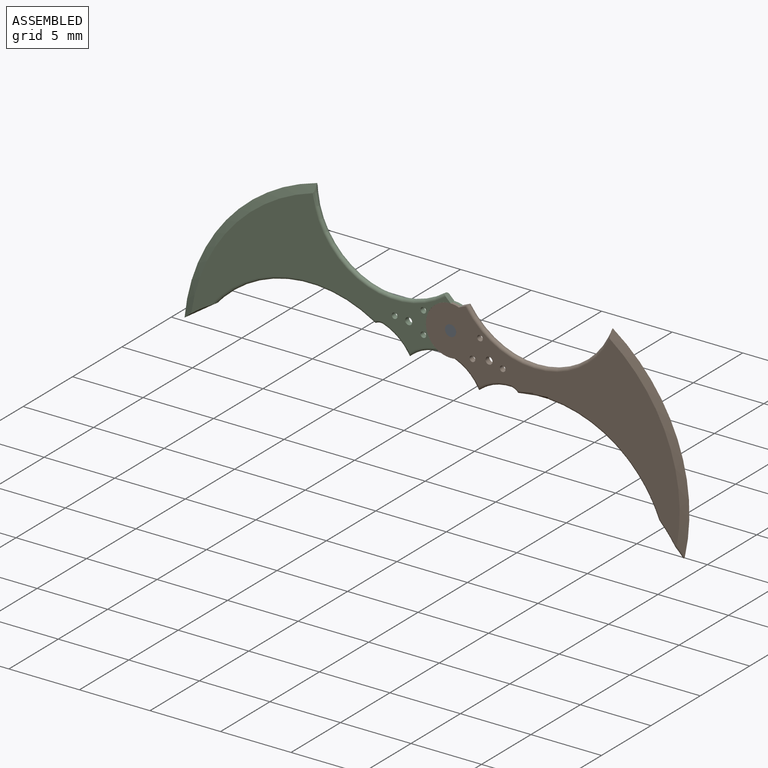
[diagram: assembled view]
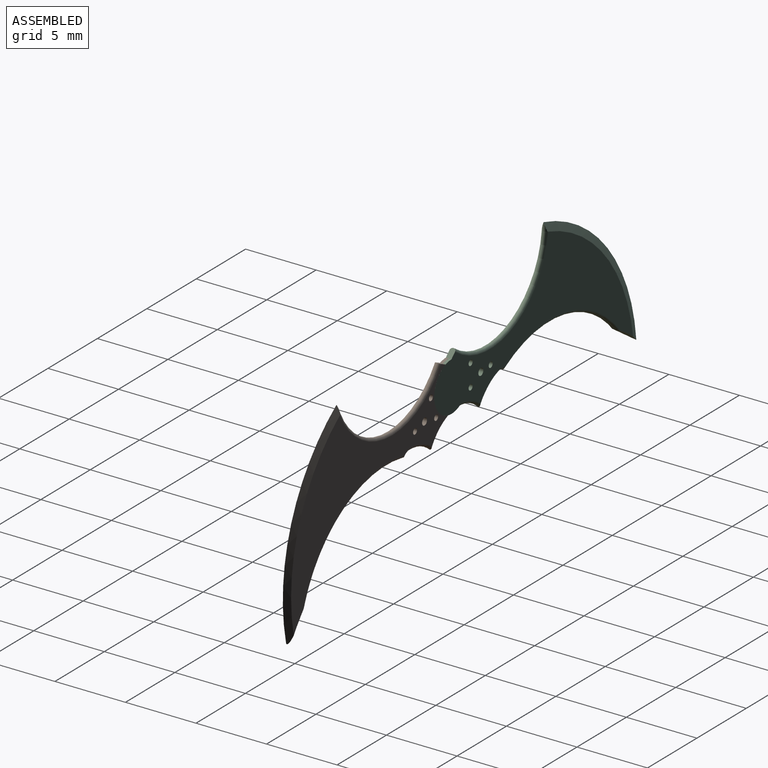
[diagram: assembled view, second angle]
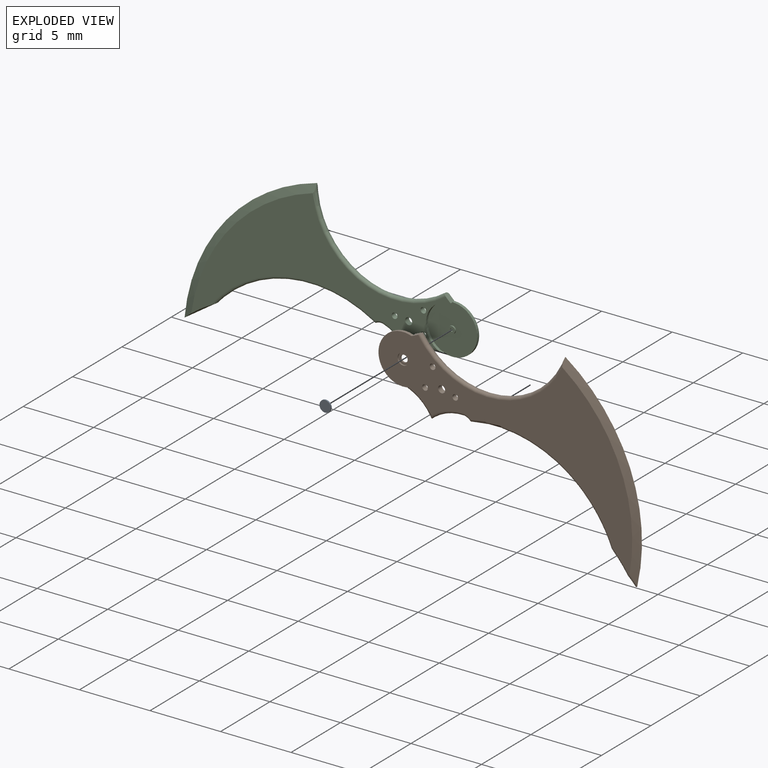
[diagram: exploded view]
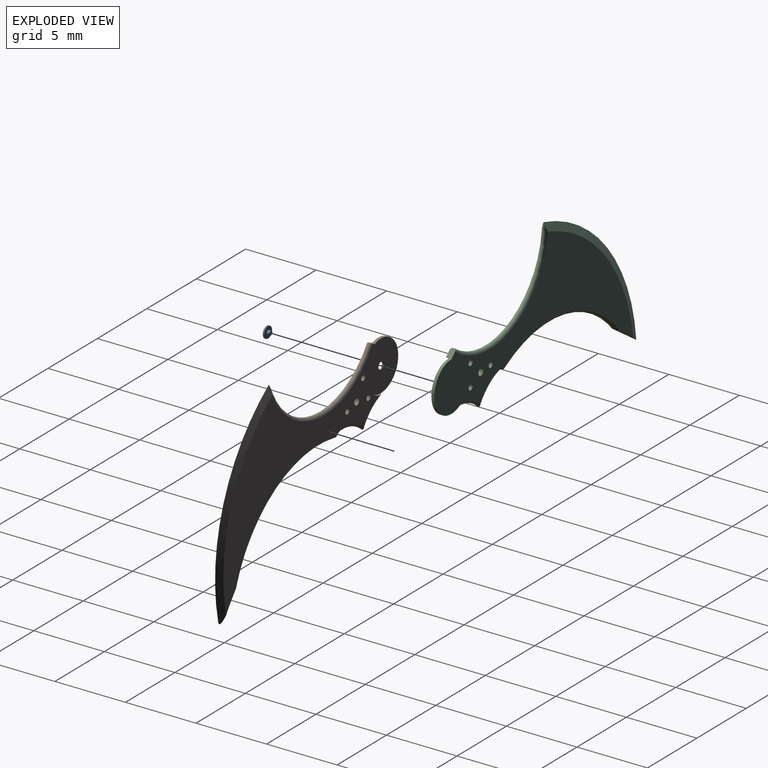
[diagram: exploded view, second angle]
ASSEMBLY  parts=3 mates=2
PART A: 5 faces, bbox 0.8x0.3x0.8 mm
  f0: cylinder r=0.15mm len=0.3mm, axis (0,-1,0), area 0.2mm2, adj f1,f3
  f1: plane 0.3x0.3mm, normal (0,1,0), area 0.1mm2, adj f0
  f2: cylinder r=0.4mm len=0.8mm, axis (0,-1,0), area 0.3mm2, adj f3,f4
  f3: plane 0.8x0.8mm, normal (0,1,0), area 0.4mm2, adj f0,f2
  f4: plane 0.8x0.8mm, normal (0,-1,0), area 0.5mm2, adj f2
PART B: 23 faces, bbox 22.1x1.3x12.4 mm
  f0: cylinder r=1.75mm len=3.38mm, axis (0,1,0), area 0.9mm2, adj f2,f8,f11,f14
  f1: cylinder r=9.75mm len=1.96mm, axis (0,1,0), area 0.4mm2, adj f8,f13,f17,f18,f19
  f2: plane 0.51x0.49mm, normal (-0.7,0,0.72), area 0.3mm2, adj f0,f7,f8,f10,f20
  f3: cylinder r=0.2mm len=0.4mm, axis (0,1,0), area 0.5mm2, adj f7,f8
  f4: cylinder r=0.25mm len=0.5mm, axis (0,1,0), area 0.6mm2, adj f7,f8
  f5: cylinder r=0.2mm len=0.4mm, axis (0,1,0), area 0.5mm2, adj f7,f8
  f6: cylinder r=0.2mm len=0.4mm, axis (0,1,0), area 0.5mm2, adj f7,f8
  f7: plane 20.09x9.71mm, normal (0,-1,0), area 64.3mm2, adj f2,f3,f4,f5,f6,f9,f10,f12
  f8: plane 18.38x10mm, normal (0,1,0), area 55.6mm2, adj f0,f1,f2,f3,f4,f5,f6,f13
  f9: cylinder r=0.4mm len=0.8mm, axis (0,1,0), area 0.3mm2, adj f7,f22
  f10: cylinder r=1.75mm len=3.5mm, axis (0,1,0), area 1.3mm2, adj f2,f7,f11,f14
  f11: plane 3.5x3.5mm, normal (0,1,0), area 9.4mm2, adj f0,f10,f21
  f12: cone r=12.2mm half-angle=70deg, axis (0,1,0), area 8.4mm2, adj f7,f13,f19,f20
  f13: cone r=12.75mm half-angle=70deg, axis (0,-1,0), area 8.6mm2, adj f1,f8,f12,f19,f20
  f14: torus R=3.38mm, axis (0,-1,0), area 1.4mm2, adj f0,f7,f8,f10,f15
  f15: torus R=3.55mm, axis (0,-1,0), area 1.6mm2, adj f7,f8,f14,f16
  f16: torus R=1mm, axis (0,-1,0), area 0.3mm2, adj f7,f8,f15,f17
  f17: torus R=9mm, axis (0,-1,0), area 7.9mm2, adj f1,f7,f8,f16,f18
  f18: torus R=9.95mm, axis (0,-1,0), area 0.6mm2, adj f1,f7,f17,f19
  f19: bspline ~3.41x2.9mm, area 0.3mm2, adj f1,f7,f12,f13,f18
  f20: torus R=5.9mm, axis (0,-1,0), area 7.8mm2, adj f2,f7,f8,f12,f13
  f21: cylinder r=0.25mm len=0.5mm, axis (0,1,0), area 0.2mm2, adj f11,f22
  f22: plane 0.8x0.8mm, normal (0,-1,0), area 0.3mm2, adj f9,f21
PART C: 22 faces, bbox 20.8x0.4x11.2 mm
  f0: cylinder r=1.75mm len=3.38mm, axis (0,1,0), area 0.9mm2, adj f1,f7,f10,f14
  f1: plane 0.51x0.49mm, normal (0.7,0,0.72), area 0.3mm2, adj f0,f7,f8,f9,f15
  f2: cylinder r=0.2mm len=0.4mm, axis (0,1,0), area 0.5mm2, adj f7,f8
  f3: cylinder r=9.75mm len=2.36mm, axis (0,1,0), area 0.9mm2, adj f7,f8,f11,f18,f19
  f4: cylinder r=0.25mm len=0.5mm, axis (0,1,0), area 0.6mm2, adj f7,f8
  f5: cylinder r=0.2mm len=0.4mm, axis (0,1,0), area 0.5mm2, adj f7,f8
  f6: cylinder r=0.2mm len=0.4mm, axis (0,1,0), area 0.5mm2, adj f7,f8
  f7: plane 18.38x10mm, normal (0,-1,0), area 55.6mm2, adj f0,f1,f2,f3,f4,f5,f6,f11
  f8: plane 20.13x10mm, normal (0,1,0), area 65.2mm2, adj f1,f2,f3,f4,f5,f6,f9,f11
  f9: cylinder r=1.75mm len=3.5mm, axis (0,-1,0), area 1.3mm2, adj f1,f8,f10,f14
  f10: plane 3.5x3.5mm, normal (0,-1,0), area 9.4mm2, adj f0,f9,f16
  f11: torus R=9mm, axis (0,-1,0), area 7.9mm2, adj f3,f7,f8,f12
  f12: torus R=1mm, axis (0,-1,0), area 0.3mm2, adj f7,f8,f11,f13
  f13: torus R=3.55mm, axis (0,-1,0), area 1.6mm2, adj f7,f8,f12,f14
  f14: torus R=3.38mm, axis (0,-1,0), area 1.4mm2, adj f0,f7,f8,f9,f13
  f15: torus R=5.9mm, axis (0,-1,0), area 7.8mm2, adj f1,f7,f8,f18,f19
  f16: cylinder r=0.25mm len=0.5mm, axis (0,1,0), area 0.2mm2, adj f10,f17
  f17: plane 0.5x0.5mm, normal (0,-1,0), area 0.2mm2, adj f16,f20
  f18: cone r=12.75mm half-angle=70deg, axis (0,1,0), area 8.6mm2, adj f3,f7,f15,f19
  f19: cone r=12.2mm half-angle=70deg, axis (0,-1,0), area 8.6mm2, adj f3,f8,f15,f18
  f20: cylinder r=0.1mm len=0.2mm, axis (0,1,0), area 0.1mm2, adj f17,f21
  f21: plane 0.2x0.2mm, normal (0,-1,0), area 0mm2, adj f20
PLACE A t=(-12.24,3.64,-2.21)mm
PLACE B rot(axis=(0,1,0),20deg) t=(-16.18,3.84,-1.52)mm
PLACE C t=(-12.24,3.84,-2.21)mm
MATE cylindrical C.f0 <-> B.f0  axis (0,-1,0) through (-12.24,3.74,9.29)mm
MATE cylindrical A.f0 <-> B.f0  axis (0,1,0) through (-12.24,3.74,9.29)mm
